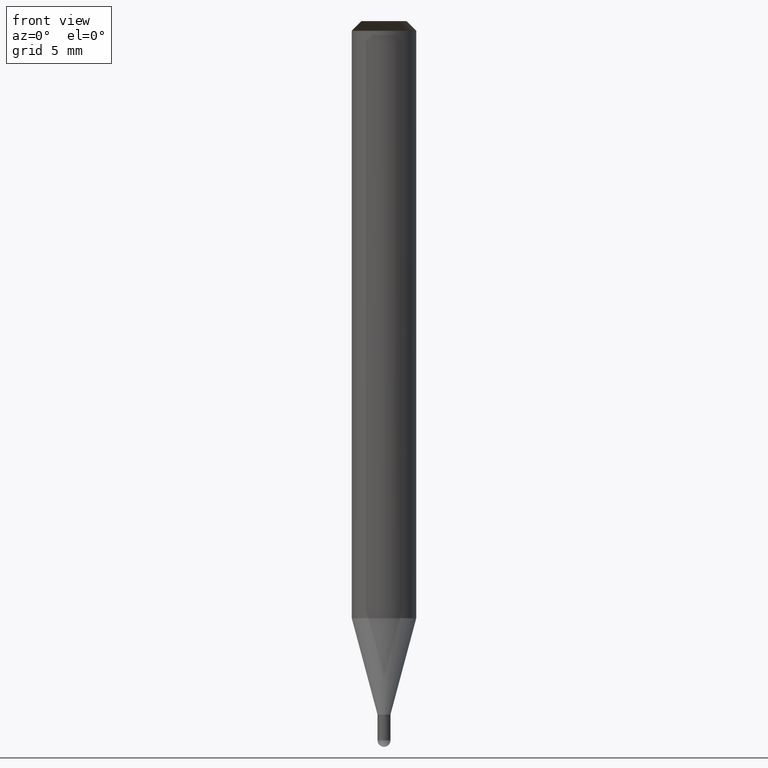
[diagram: clean part render]
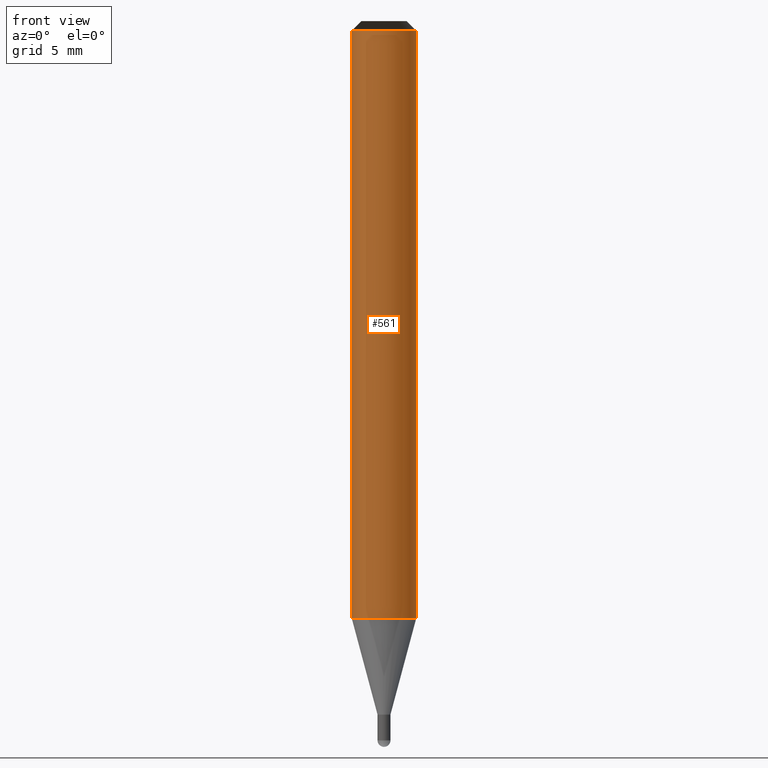
[diagram: same view with one face highlighted and labeled with its STEP entity id]
A machine part, front view. The second image highlights one B-rep face of the part: STEP entity #561.
In plain terms, the highlighted face is a freeform B-spline surface patch.
Its self-contained STEP definition (entity closure, byte-faithful):
#233=CARTESIAN_POINT('',(2.0,0.0,-0.0));
#237=CARTESIAN_POINT('',(-2.0,0.0,-0.0));
#238=CARTESIAN_POINT('',(2.0,0.0,36.428));
#242=CARTESIAN_POINT('',(-2.0,0.0,36.428));
#252=CARTESIAN_POINT('',(-2.0,-2.0,-0.0));
#253=CARTESIAN_POINT('',(0.0,-2.0,-0.0));
#254=CARTESIAN_POINT('',(2.0,-2.0,-0.0));
#255=CARTESIAN_POINT('',(-2.0,-2.0,36.428));
#256=CARTESIAN_POINT('',(0.0,-2.0,36.428));
#257=CARTESIAN_POINT('',(2.0,-2.0,36.428));
#542=(
BOUNDED_SURFACE()
B_SPLINE_SURFACE(1,2,(
(#237,#252,#253,#254,#233),
(#242,#255,#256,#257,#238)
), .UNSPECIFIED.,.F.,.F.,.F.)
B_SPLINE_SURFACE_WITH_KNOTS((2,2),(3,2,3),(
0.0,1.0),(
0.0,0.5,1.0), .UNSPECIFIED.)
GEOMETRIC_REPRESENTATION_ITEM()
RATIONAL_B_SPLINE_SURFACE(((1.0,0.707106781187,1.0,0.707106781187,1.0),
(1.0,0.707106781187,1.0,0.707106781187,1.0)
))
REPRESENTATION_ITEM('')
SURFACE()
);
#543=(
BOUNDED_CURVE()
B_SPLINE_CURVE(1,(#242,#237),.UNSPECIFIED.,.F.,.F.)
B_SPLINE_CURVE_WITH_KNOTS((2,2),
(0.0,1.0),.UNSPECIFIED.)
CURVE()
GEOMETRIC_REPRESENTATION_ITEM()
RATIONAL_B_SPLINE_CURVE((1.0,1.0))
REPRESENTATION_ITEM('')
);
#544=(
BOUNDED_CURVE()
B_SPLINE_CURVE(2,(#237,#252,#253,#254,#233),.UNSPECIFIED.,.F.,.F.)
B_SPLINE_CURVE_WITH_KNOTS((3,2,3),
(0.0,0.5,1.0),.UNSPECIFIED.)
CURVE()
GEOMETRIC_REPRESENTATION_ITEM()
RATIONAL_B_SPLINE_CURVE((1.0,0.707106781187,1.0,0.707106781187,1.0))
REPRESENTATION_ITEM('')
);
#545=(
BOUNDED_CURVE()
B_SPLINE_CURVE(1,(#233,#238),.UNSPECIFIED.,.F.,.F.)
B_SPLINE_CURVE_WITH_KNOTS((2,2),
(0.0,1.0),.UNSPECIFIED.)
CURVE()
GEOMETRIC_REPRESENTATION_ITEM()
RATIONAL_B_SPLINE_CURVE((1.0,1.0))
REPRESENTATION_ITEM('')
);
#546=(
BOUNDED_CURVE()
B_SPLINE_CURVE(2,(#238,#257,#256,#255,#242),.UNSPECIFIED.,.F.,.F.)
B_SPLINE_CURVE_WITH_KNOTS((3,2,3),
(0.0,0.5,1.0),.UNSPECIFIED.)
CURVE()
GEOMETRIC_REPRESENTATION_ITEM()
RATIONAL_B_SPLINE_CURVE((1.0,0.707106781187,1.0,0.707106781187,1.0))
REPRESENTATION_ITEM('')
);
#547=VERTEX_POINT('',#233);
#548=VERTEX_POINT('',#237);
#549=VERTEX_POINT('',#238);
#550=VERTEX_POINT('',#242);
#551=EDGE_CURVE('',#550,#548,#543,.T.);
#552=EDGE_CURVE('',#548,#547,#544,.T.);
#553=EDGE_CURVE('',#547,#549,#545,.T.);
#554=EDGE_CURVE('',#549,#550,#546,.T.);
#555=ORIENTED_EDGE('',*,*,#551,.T.);
#556=ORIENTED_EDGE('',*,*,#552,.T.);
#557=ORIENTED_EDGE('',*,*,#553,.T.);
#558=ORIENTED_EDGE('',*,*,#554,.T.);
#559=EDGE_LOOP('',(#555,#556,#557,#558));
#560=FACE_OUTER_BOUND('',#559,.T.);
#561=ADVANCED_FACE('',(#560),#542,.T.);